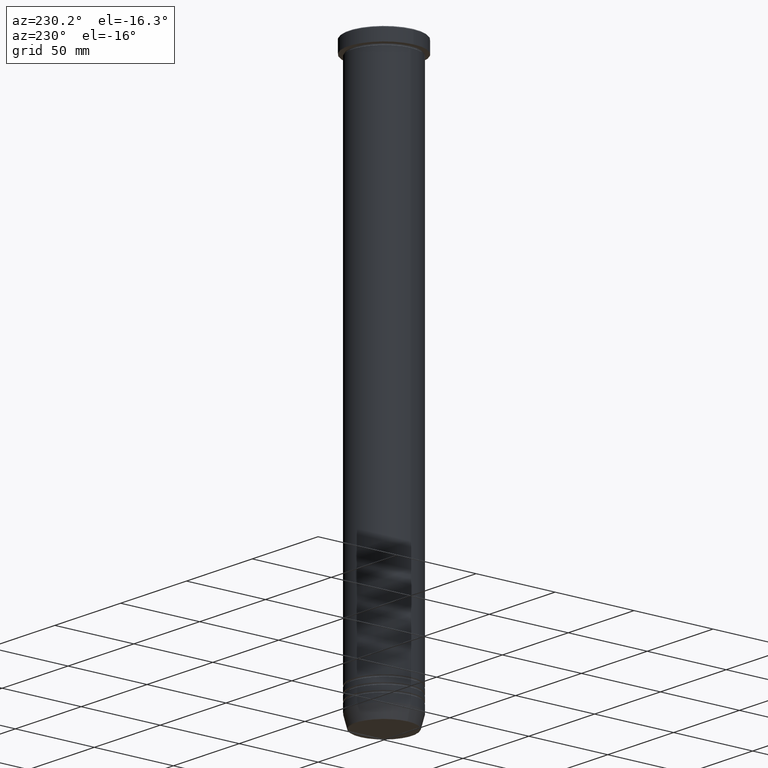
[diagram: clean part render]
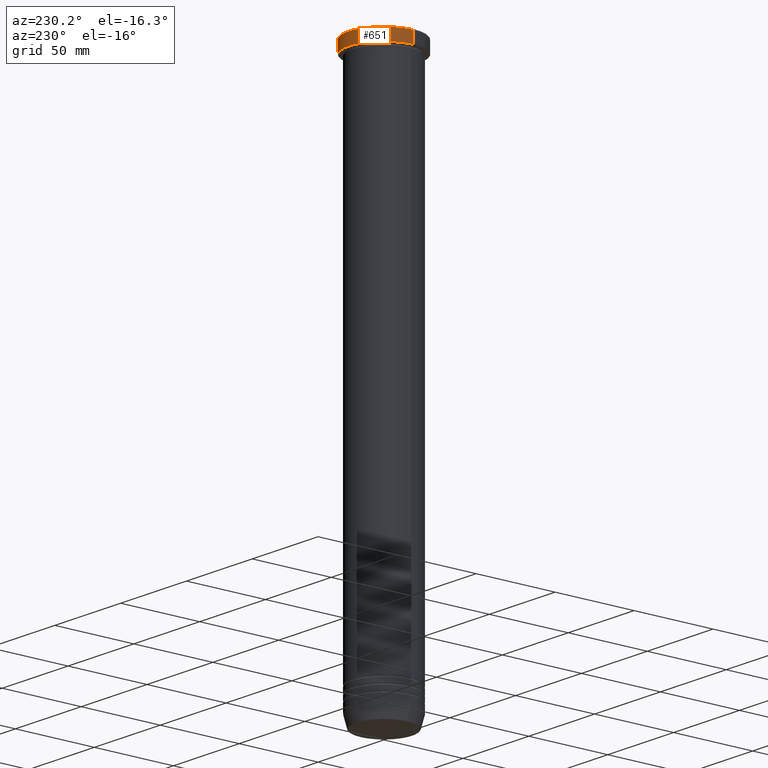
[diagram: same view with one face highlighted and labeled with its STEP entity id]
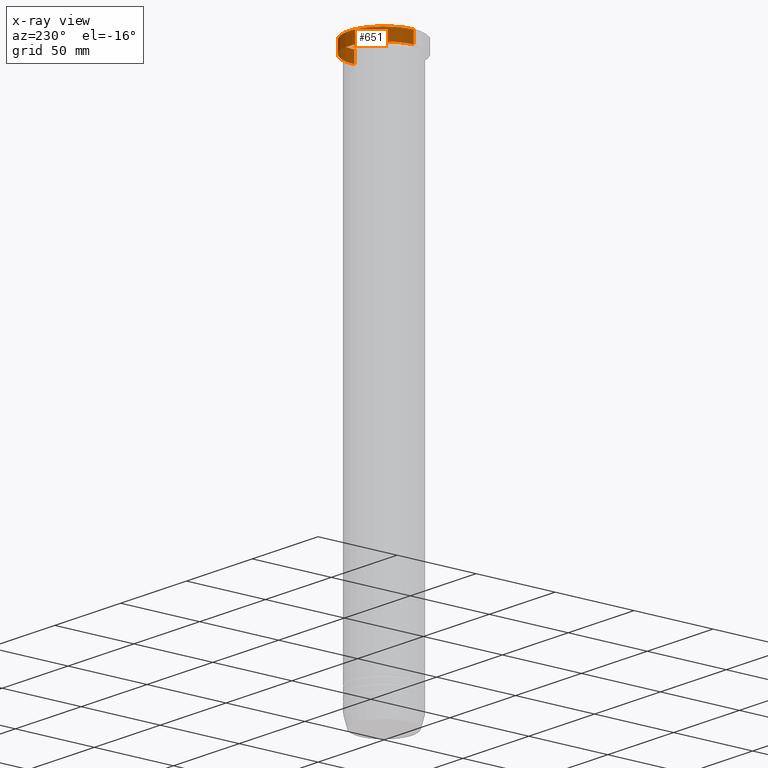
[diagram: x-ray of the same camera — body ghosted, the highlighted face saturated]
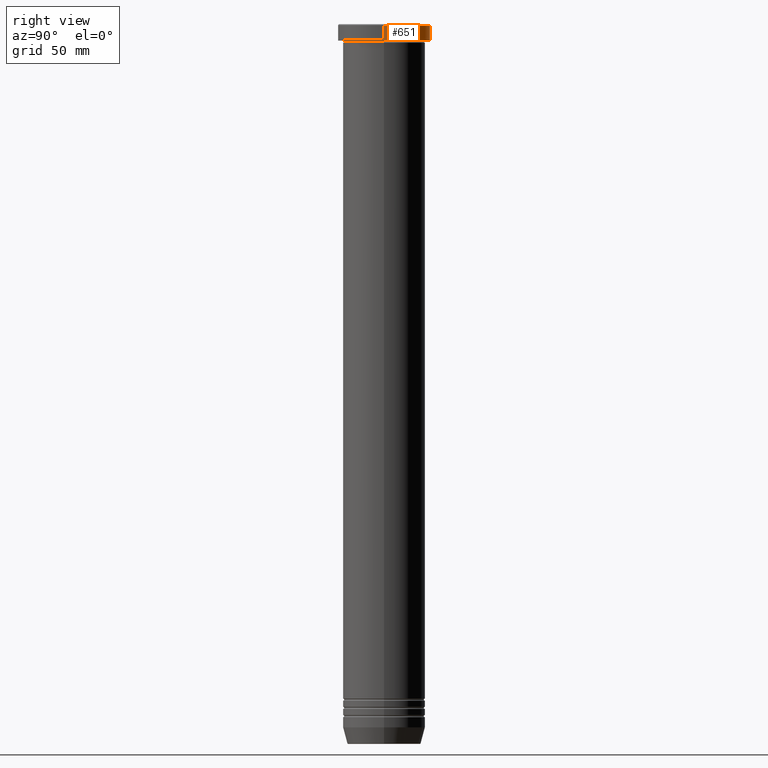
[diagram: same view with one face highlighted and labeled with its STEP entity id]
A machine part, auxiliary view. The second image highlights one B-rep face of the part: STEP entity #651.
The next image is the same camera in x-ray: the body ghosted, the highlighted face saturated — about 0% of this face is hidden behind the body in this view.
A second angle (right view) of the same face is appended — the face is thin or edge-on in the first view.
In plain terms, the highlighted cylindrical surface (partial cylindrical patch) has radius 22.5 mm, axis along (-0, -0, 1).
Its self-contained STEP definition (entity closure, byte-faithful):
#3 = CARTESIAN_POINT ( 'NONE',  ( -22.50000000000000000, 2.755455298081544778E-15, -0.5000000000000213163 ) ) ;
#5 = EDGE_CURVE ( 'NONE', #472, #220, #252, .T. ) ;
#32 = DIRECTION ( 'NONE',  ( 0.000000000000000000, 0.000000000000000000, -1.000000000000000000 ) ) ;
#54 = VECTOR ( 'NONE', #178, 1000.000000000000000 ) ;
#112 = LINE ( 'NONE', #824, #1033 ) ;
#119 = FACE_OUTER_BOUND ( 'NONE', #295, .T. ) ;
#174 = CARTESIAN_POINT ( 'NONE',  ( 22.50000000000000000, 0.000000000000000000, -7.999999999999998224 ) ) ;
#178 = DIRECTION ( 'NONE',  ( -0.000000000000000000, -0.000000000000000000, 1.000000000000000000 ) ) ;
#204 = DIRECTION ( 'NONE',  ( 1.000000000000000000, 0.000000000000000000, 0.000000000000000000 ) ) ;
#206 = VERTEX_POINT ( 'NONE', #3 ) ;
#211 = DIRECTION ( 'NONE',  ( -0.000000000000000000, -0.000000000000000000, 1.000000000000000000 ) ) ;
#220 = VERTEX_POINT ( 'NONE', #644 ) ;
#252 = LINE ( 'NONE', #570, #54 ) ;
#295 = EDGE_LOOP ( 'NONE', ( #782, #590, #482, #586 ) ) ;
#332 = AXIS2_PLACEMENT_3D ( 'NONE', #431, #211, #849 ) ;
#431 = CARTESIAN_POINT ( 'NONE',  ( 0.000000000000000000, 0.000000000000000000, 0.000000000000000000 ) ) ;
#438 = CARTESIAN_POINT ( 'NONE',  ( 0.000000000000000000, 0.000000000000000000, -0.5000000000000213163 ) ) ;
#472 = VERTEX_POINT ( 'NONE', #174 ) ;
#482 = ORIENTED_EDGE ( 'NONE', *, *, #618, .T. ) ;
#501 = CIRCLE ( 'NONE', #611, 22.50000000000000000 ) ;
#569 = DIRECTION ( 'NONE',  ( -0.000000000000000000, -0.000000000000000000, 1.000000000000000000 ) ) ;
#570 = CARTESIAN_POINT ( 'NONE',  ( 22.50000000000000000, 0.000000000000000000, 0.000000000000000000 ) ) ;
#586 = ORIENTED_EDGE ( 'NONE', *, *, #5, .F. ) ;
#590 = ORIENTED_EDGE ( 'NONE', *, *, #1044, .T. ) ;
#599 = CIRCLE ( 'NONE', #729, 22.50000000000000000 ) ;
#611 = AXIS2_PLACEMENT_3D ( 'NONE', #681, #748, #752 ) ;
#618 = EDGE_CURVE ( 'NONE', #206, #220, #599, .T. ) ;
#644 = CARTESIAN_POINT ( 'NONE',  ( 22.50000000000000000, 0.000000000000000000, -0.5000000000000213163 ) ) ;
#651 = ADVANCED_FACE ( 'NONE', ( #119 ), #922, .T. ) ;
#681 = CARTESIAN_POINT ( 'NONE',  ( 0.000000000000000000, 0.000000000000000000, -7.999999999999998224 ) ) ;
#729 = AXIS2_PLACEMENT_3D ( 'NONE', #438, #32, #204 ) ;
#748 = DIRECTION ( 'NONE',  ( -0.000000000000000000, -0.000000000000000000, 1.000000000000000000 ) ) ;
#752 = DIRECTION ( 'NONE',  ( 1.000000000000000000, 0.000000000000000000, 0.000000000000000000 ) ) ;
#782 = ORIENTED_EDGE ( 'NONE', *, *, #890, .T. ) ;
#824 = CARTESIAN_POINT ( 'NONE',  ( -22.50000000000000000, 2.755455298081544778E-15, 0.000000000000000000 ) ) ;
#843 = CARTESIAN_POINT ( 'NONE',  ( -22.50000000000000000, 2.755455298081544778E-15, -7.999999999999998224 ) ) ;
#844 = VERTEX_POINT ( 'NONE', #843 ) ;
#849 = DIRECTION ( 'NONE',  ( 1.000000000000000000, 0.000000000000000000, 0.000000000000000000 ) ) ;
#890 = EDGE_CURVE ( 'NONE', #472, #844, #501, .T. ) ;
#922 = CYLINDRICAL_SURFACE ( 'NONE', #332, 22.50000000000000000 ) ;
#1033 = VECTOR ( 'NONE', #569, 1000.000000000000000 ) ;
#1044 = EDGE_CURVE ( 'NONE', #844, #206, #112, .T. ) ;